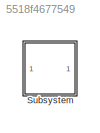
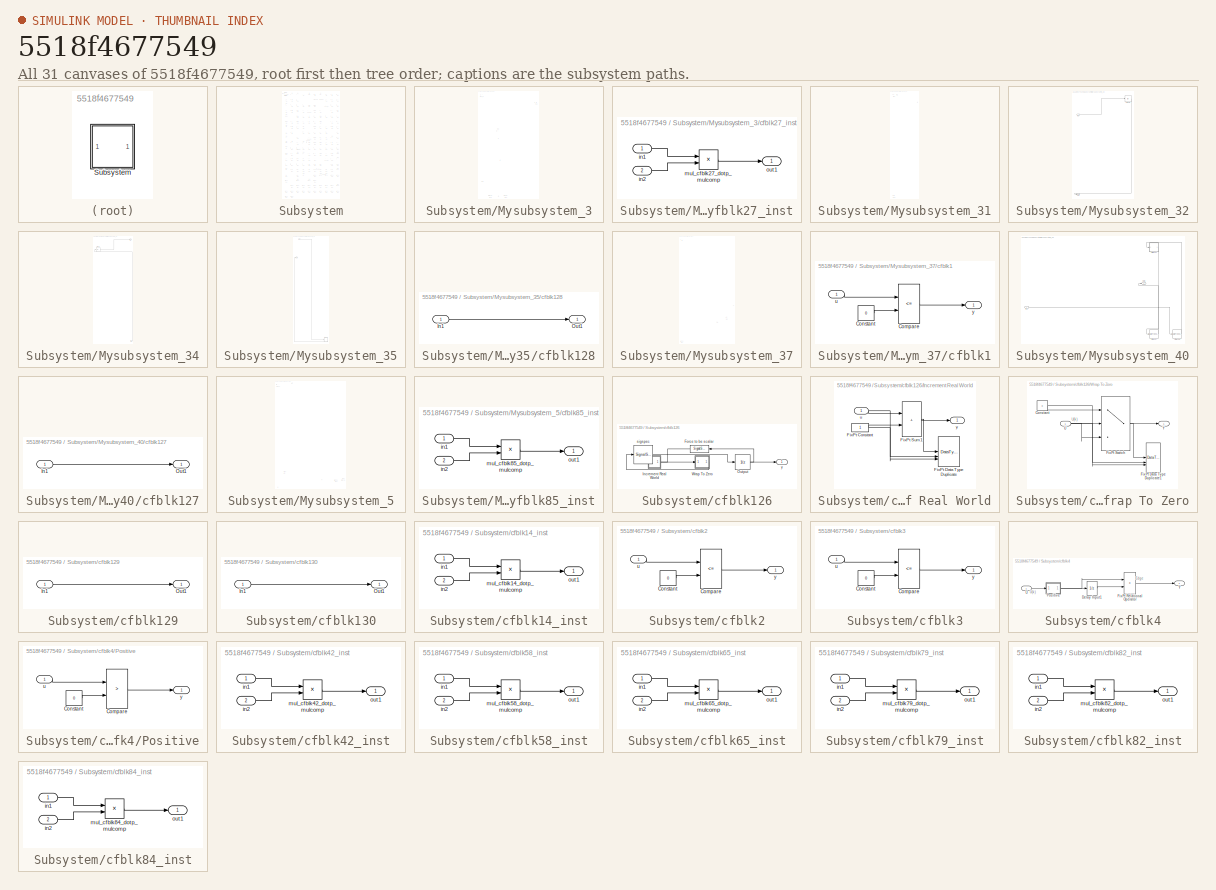
[diagram: thumbnail index - all 31 canvases of the model, root first then tree order]
MODEL slx_5518f4677549
KIND model
CONFIG AbsTol = auto
CONFIG EnableMultiTasking = off
CONFIG FixedStep = auto
CONFIG MaxStep = auto
CONFIG MinStep = auto
CONFIG RelTol = 1e-3
CONFIG SampleTimeConstraint = Unconstrained
CONFIG SolverName = VariableStepAuto
CONFIG StartTime = 0.0
CONFIG StopTime = 10.0
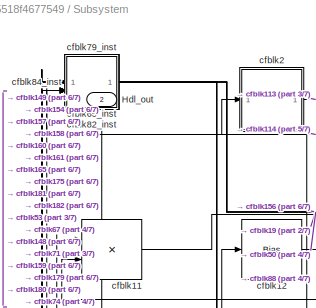
[diagram: Subsystem - part 1/7, top left region]
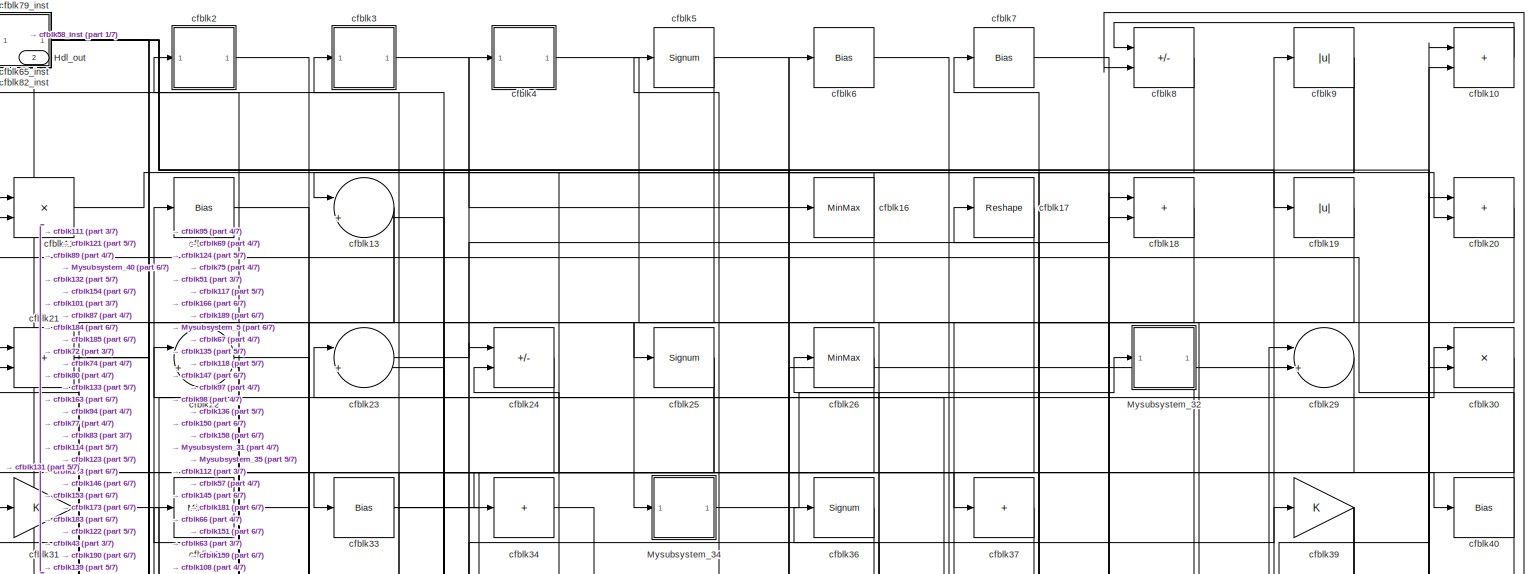
[diagram: Subsystem - part 2/7, full width, top band]
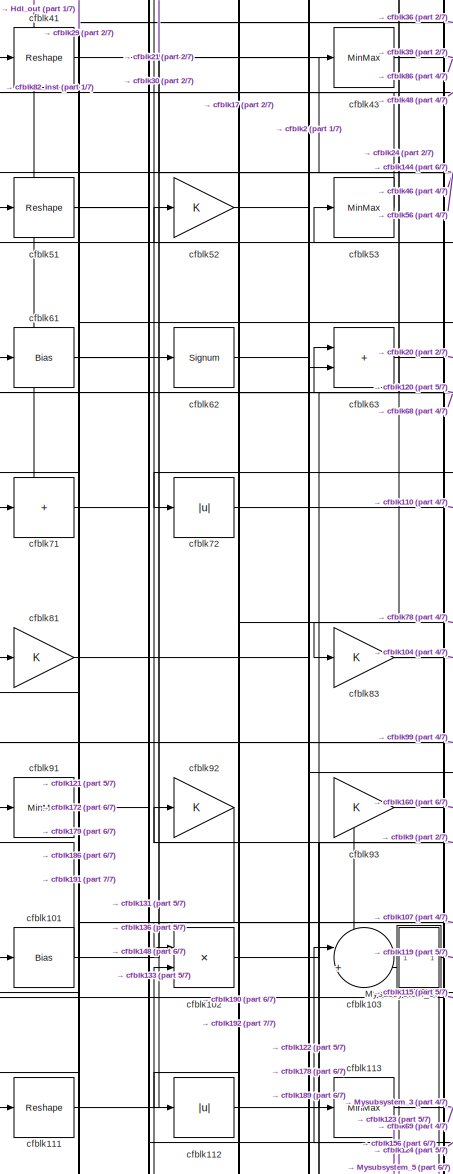
[diagram: Subsystem - part 3/7, middle left region]
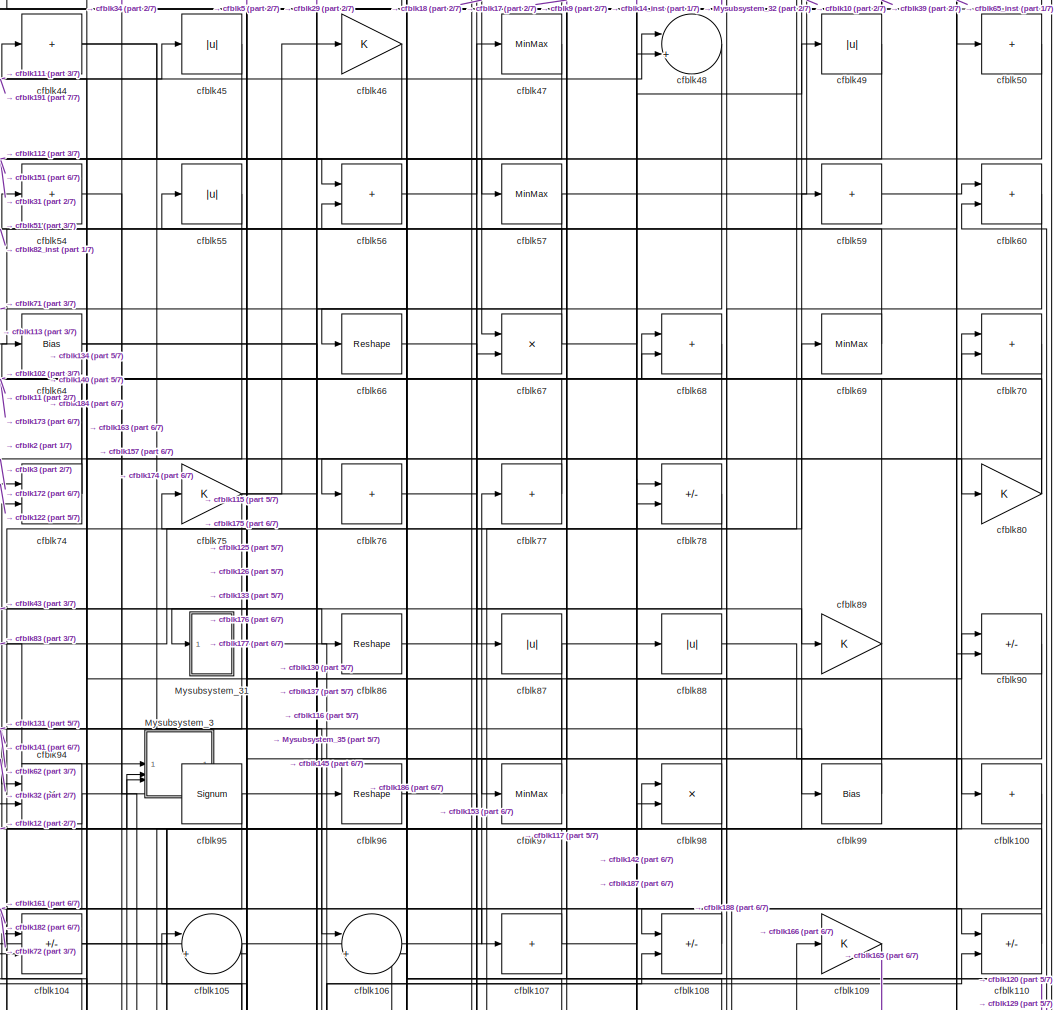
[diagram: Subsystem - part 4/7, central region]
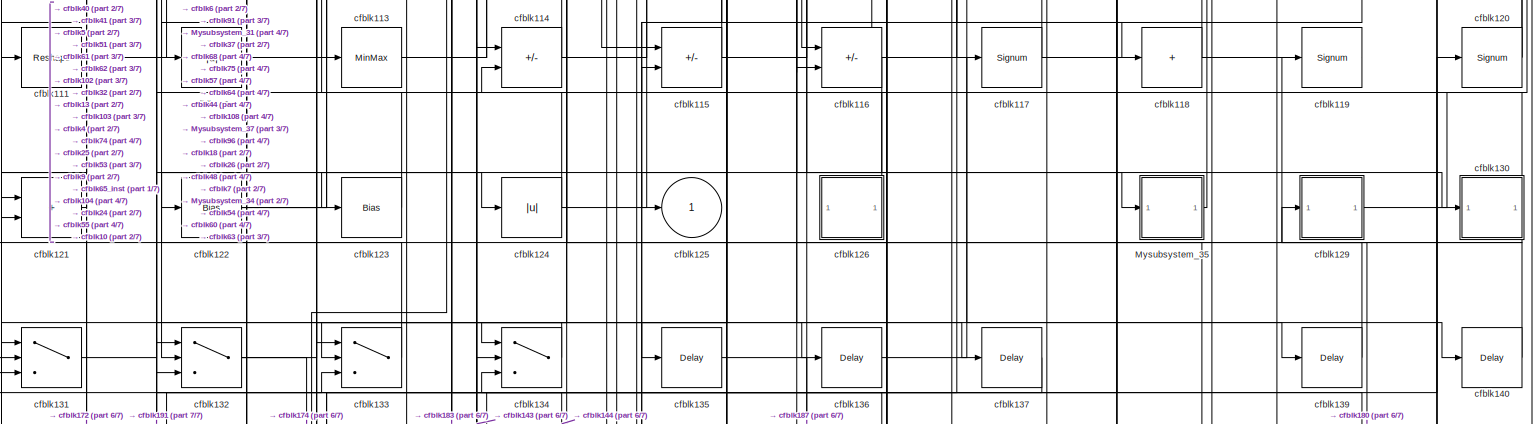
[diagram: Subsystem - part 5/7, full width, middle band]
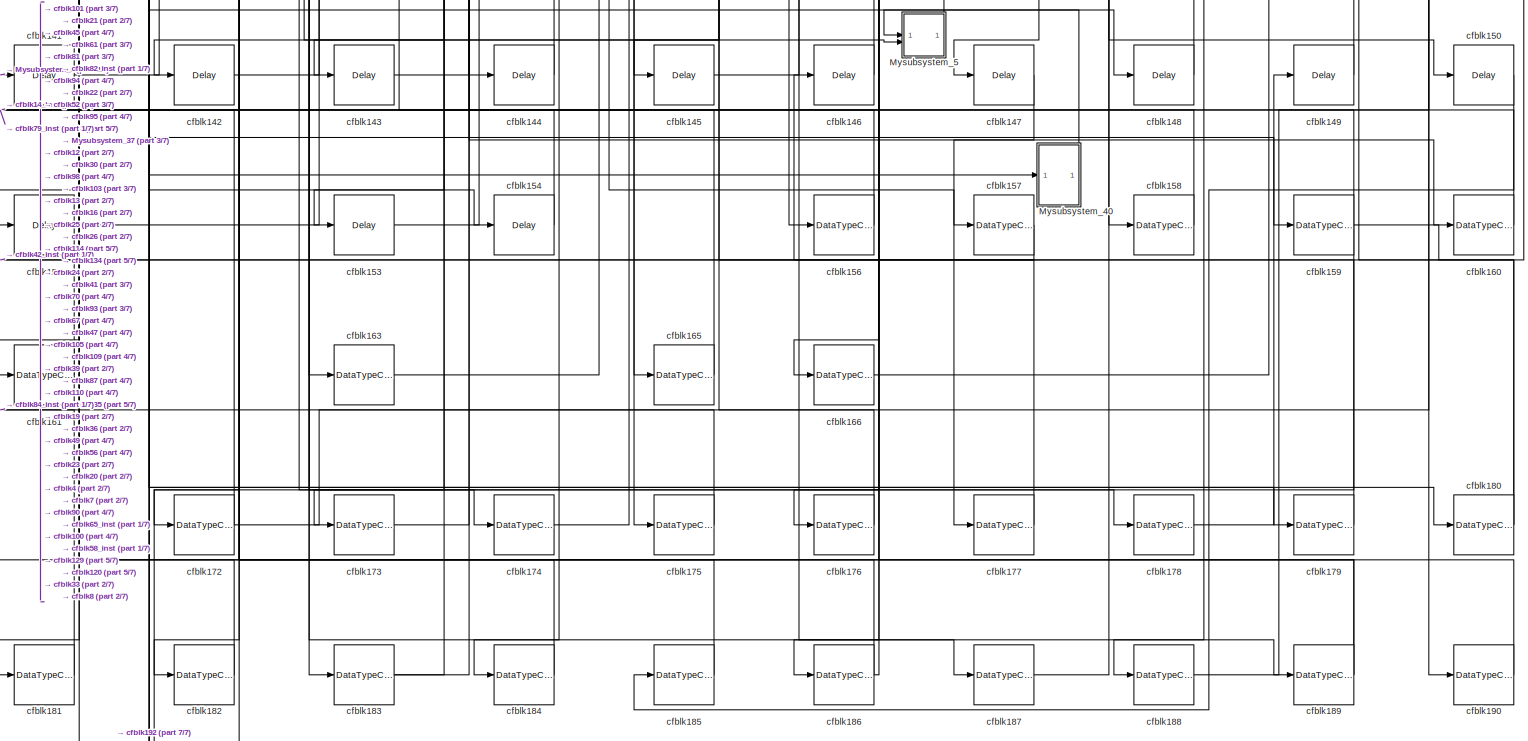
[diagram: Subsystem - part 6/7, full width, bottom band]
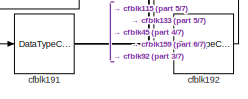
[diagram: Subsystem - part 7/7, bottom left region]
BLOCK [SubSystem] Subsystem
BLOCK [Outport] Subsystem/Hdl_out
  OutDataTypeStr = uint8
  Port = 2
  SampleTime = 1
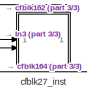
[diagram: Subsystem/Mysubsystem_3 - part 1/3, top left region]
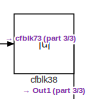
[diagram: Subsystem/Mysubsystem_3 - part 2/3, top right region]
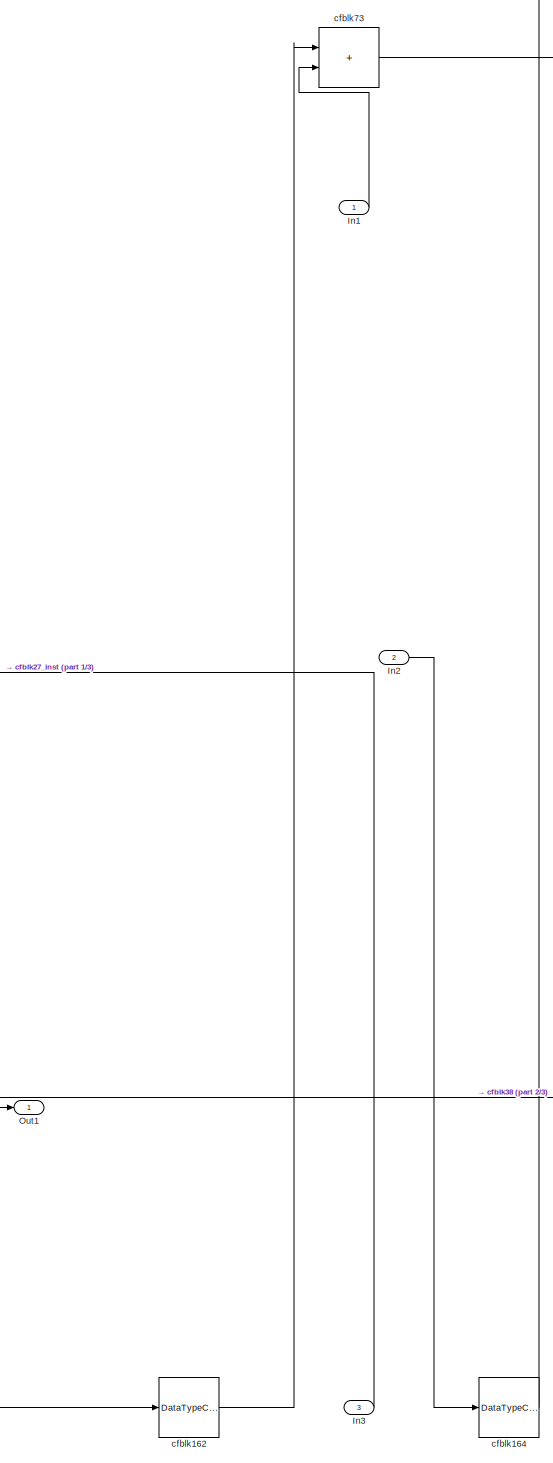
[diagram: Subsystem/Mysubsystem_3 - part 3/3, bottom left region]
BLOCK [SubSystem] Subsystem/Mysubsystem_3
BLOCK [Inport] Subsystem/Mysubsystem_3/In1
  OutDataTypeStr = uint8
  PortDimensions = 1
  SampleTime = 1
BLOCK [Inport] Subsystem/Mysubsystem_3/In2
  OutDataTypeStr = uint8
  Port = 2
  PortDimensions = 1
  SampleTime = 1
BLOCK [Inport] Subsystem/Mysubsystem_3/In3
  OutDataTypeStr = uint8
  Port = 3
  PortDimensions = 1
  SampleTime = 1
BLOCK [Outport] Subsystem/Mysubsystem_3/Out1
  SampleTime = 1
BLOCK [DataTypeConversion] Subsystem/Mysubsystem_3/cfblk162
  OutDataTypeStr = uint8
  RndMeth = Floor
  SaturateOnIntegerOverflow = off
BLOCK [DataTypeConversion] Subsystem/Mysubsystem_3/cfblk164
  OutDataTypeStr = uint8
  RndMeth = Floor
  SaturateOnIntegerOverflow = off
BLOCK [SubSystem] Subsystem/Mysubsystem_3/cfblk27_inst
BLOCK [Inport] Subsystem/Mysubsystem_3/cfblk27_inst/in1
  OutDataTypeStr = uint8
  SampleTime = 1
BLOCK [Inport] Subsystem/Mysubsystem_3/cfblk27_inst/in2
  OutDataTypeStr = uint8
  Port = 2
  SampleTime = 1
BLOCK [Product] Subsystem/Mysubsystem_3/cfblk27_inst/mul_cfblk27_dotp_mulcomp
  Inputs = **
  OutDataTypeStr = uint16
  SampleTime = 1
BLOCK [Outport] Subsystem/Mysubsystem_3/cfblk27_inst/out1
  OutDataTypeStr = uint16
  SampleTime = 1
BLOCK [Abs] Subsystem/Mysubsystem_3/cfblk38
  SaturateOnIntegerOverflow = off
BLOCK [Sum] Subsystem/Mysubsystem_3/cfblk73
  IconShape = rectangular
BLOCK [SubSystem] Subsystem/Mysubsystem_31
BLOCK [Inport] Subsystem/Mysubsystem_31/In1
  OutDataTypeStr = double
  PortDimensions = 1
  SampleTime = 1
BLOCK [Outport] Subsystem/Mysubsystem_31/Out1
  SampleTime = 1
BLOCK [Gain] Subsystem/Mysubsystem_31/cfblk15
BLOCK [Delay] Subsystem/Mysubsystem_31/cfblk155
  InputPortMap = u0
  SampleTime = 1
BLOCK [SubSystem] Subsystem/Mysubsystem_32
BLOCK [Inport] Subsystem/Mysubsystem_32/In1
  OutDataTypeStr = double
  PortDimensions = 1
  SampleTime = 1
BLOCK [Outport] Subsystem/Mysubsystem_32/Out1
  SampleTime = 1
BLOCK [Abs] Subsystem/Mysubsystem_32/cfblk28
  SaturateOnIntegerOverflow = off
BLOCK [SubSystem] Subsystem/Mysubsystem_34
BLOCK [Inport] Subsystem/Mysubsystem_34/In1
  OutDataTypeStr = double
  PortDimensions = 1
  SampleTime = 1
BLOCK [Outport] Subsystem/Mysubsystem_34/Out1
  SampleTime = 1
BLOCK [Abs] Subsystem/Mysubsystem_34/cfblk35
  SaturateOnIntegerOverflow = off
BLOCK [SubSystem] Subsystem/Mysubsystem_35
BLOCK [Inport] Subsystem/Mysubsystem_35/In1
  OutDataTypeStr = double
  PortDimensions = 1
  SampleTime = 1
BLOCK [Outport] Subsystem/Mysubsystem_35/Out1
  SampleTime = 1
BLOCK [SubSystem] Subsystem/Mysubsystem_35/cfblk128
BLOCK [Inport] Subsystem/Mysubsystem_35/cfblk128/In1
  OutDataTypeStr = double
  PortDimensions = 1
  SampleTime = 1
BLOCK [Outport] Subsystem/Mysubsystem_35/cfblk128/Out1
  SampleTime = 1
BLOCK [SubSystem] Subsystem/Mysubsystem_37
BLOCK [Inport] Subsystem/Mysubsystem_37/In1
  OutDataTypeStr = uint8
  PortDimensions = 1
  SampleTime = 1
BLOCK [Outport] Subsystem/Mysubsystem_37/Out1
  SampleTime = 1
BLOCK [SubSystem] Subsystem/Mysubsystem_37/cfblk1
BLOCK [RelationalOperator] Subsystem/Mysubsystem_37/cfblk1/Compare
  Operator = <=
  OutDataTypeStr = boolean
BLOCK [Constant] Subsystem/Mysubsystem_37/cfblk1/Constant
  DisableCoverage = on
  OutDataTypeStr = Inherit: Inherit via back propagation
  PreserveConstantTs = on
  SampleTime = -1
  Value = 0
BLOCK [Inport] Subsystem/Mysubsystem_37/cfblk1/u
  OutDataTypeStr = uint8
  SampleTime = 1
BLOCK [Outport] Subsystem/Mysubsystem_37/cfblk1/y
  SampleTime = 1
BLOCK [Delay] Subsystem/Mysubsystem_37/cfblk138
  InputPortMap = u0
  SampleTime = 1
BLOCK [DataTypeConversion] Subsystem/Mysubsystem_37/cfblk171
  OutDataTypeStr = uint8
  RndMeth = Floor
  SaturateOnIntegerOverflow = off
BLOCK [SubSystem] Subsystem/Mysubsystem_40
BLOCK [Inport] Subsystem/Mysubsystem_40/In1
  OutDataTypeStr = uint8
  PortDimensions = 1
  SampleTime = 1
BLOCK [Outport] Subsystem/Mysubsystem_40/Out1
  SampleTime = 1
BLOCK [SubSystem] Subsystem/Mysubsystem_40/cfblk127
BLOCK [Inport] Subsystem/Mysubsystem_40/cfblk127/In1
  OutDataTypeStr = uint8
  PortDimensions = 1
  SampleTime = 1
BLOCK [Outport] Subsystem/Mysubsystem_40/cfblk127/Out1
  SampleTime = 1
BLOCK [DataTypeConversion] Subsystem/Mysubsystem_40/cfblk167
  OutDataTypeStr = uint8
  RndMeth = Floor
  SaturateOnIntegerOverflow = off
BLOCK [DataTypeConversion] Subsystem/Mysubsystem_40/cfblk168
  OutDataTypeStr = uint8
  RndMeth = Floor
  SaturateOnIntegerOverflow = off
BLOCK [SubSystem] Subsystem/Mysubsystem_5
BLOCK [Inport] Subsystem/Mysubsystem_5/In1
  OutDataTypeStr = uint8
  PortDimensions = 1
  SampleTime = 1
BLOCK [Inport] Subsystem/Mysubsystem_5/In2
  OutDataTypeStr = uint8
  Port = 2
  PortDimensions = 1
  SampleTime = 1
BLOCK [Outport] Subsystem/Mysubsystem_5/Out1
  SampleTime = 1
BLOCK [Delay] Subsystem/Mysubsystem_5/cfblk152
  InputPortMap = u0
  SampleTime = 1
BLOCK [DataTypeConversion] Subsystem/Mysubsystem_5/cfblk169
  OutDataTypeStr = uint8
  RndMeth = Floor
  SaturateOnIntegerOverflow = off
BLOCK [DataTypeConversion] Subsystem/Mysubsystem_5/cfblk170
  OutDataTypeStr = uint8
  RndMeth = Floor
  SaturateOnIntegerOverflow = off
BLOCK [SubSystem] Subsystem/Mysubsystem_5/cfblk85_inst
BLOCK [Inport] Subsystem/Mysubsystem_5/cfblk85_inst/in1
  OutDataTypeStr = uint8
  SampleTime = 1
BLOCK [Inport] Subsystem/Mysubsystem_5/cfblk85_inst/in2
  OutDataTypeStr = uint8
  Port = 2
  SampleTime = 1
BLOCK [Product] Subsystem/Mysubsystem_5/cfblk85_inst/mul_cfblk85_dotp_mulcomp
  Inputs = **
  OutDataTypeStr = uint16
  SampleTime = 1
BLOCK [Outport] Subsystem/Mysubsystem_5/cfblk85_inst/out1
  OutDataTypeStr = uint16
  SampleTime = 1
BLOCK [Sum] Subsystem/cfblk10
  IconShape = rectangular
  OutDataTypeStr = uint8
BLOCK [Sum] Subsystem/cfblk100
  IconShape = rectangular
  Inputs = +
  OutDataTypeStr = uint8
BLOCK [Bias] Subsystem/cfblk101
  Bias = 0.0
  SaturateOnIntegerOverflow = off
BLOCK [Product] Subsystem/cfblk102
  Inputs = */
  OutDataTypeStr = uint8
  RndMeth = Zero
  SaturateOnIntegerOverflow = on
BLOCK [Sum] Subsystem/cfblk103
  Inputs = |++
  OutDataTypeStr = uint8
BLOCK [Sum] Subsystem/cfblk104
  IconShape = rectangular
  Inputs = +-
  OutDataTypeStr = uint8
BLOCK [Sum] Subsystem/cfblk105
  Inputs = |++
  OutDataTypeStr = uint8
BLOCK [Sum] Subsystem/cfblk106
  Inputs = |++
  OutDataTypeStr = uint8
BLOCK [Sum] Subsystem/cfblk107
  IconShape = rectangular
  Inputs = +
  OutDataTypeStr = uint8
BLOCK [Sum] Subsystem/cfblk108
  IconShape = rectangular
  Inputs = +-
  OutDataTypeStr = uint8
BLOCK [Gain] Subsystem/cfblk109
  OutDataTypeStr = uint8
BLOCK [Product] Subsystem/cfblk11
  Inputs = */
  OutDataTypeStr = uint8
  RndMeth = Zero
  SaturateOnIntegerOverflow = on
BLOCK [Sum] Subsystem/cfblk110
  IconShape = rectangular
  Inputs = +-
  OutDataTypeStr = uint8
BLOCK [Reshape] Subsystem/cfblk111
BLOCK [Abs] Subsystem/cfblk112
  OutDataTypeStr = uint8
  SaturateOnIntegerOverflow = off
BLOCK [MinMax] Subsystem/cfblk113
  OutDataTypeStr = uint8
BLOCK [Sum] Subsystem/cfblk114
  IconShape = rectangular
  Inputs = +-
  OutDataTypeStr = uint8
BLOCK [Sum] Subsystem/cfblk115
  IconShape = rectangular
  Inputs = +-
  OutDataTypeStr = uint8
BLOCK [Sum] Subsystem/cfblk116
  IconShape = rectangular
  Inputs = +-
  OutDataTypeStr = uint8
BLOCK [Signum] Subsystem/cfblk117
BLOCK [Sum] Subsystem/cfblk118
  IconShape = rectangular
  Inputs = +
  OutDataTypeStr = uint8
BLOCK [Signum] Subsystem/cfblk119
BLOCK [Bias] Subsystem/cfblk12
  Bias = 0.0
  SaturateOnIntegerOverflow = off
BLOCK [Signum] Subsystem/cfblk120
BLOCK [Sum] Subsystem/cfblk121
  IconShape = rectangular
  OutDataTypeStr = uint8
BLOCK [Bias] Subsystem/cfblk122
  Bias = 0.0
  SaturateOnIntegerOverflow = off
BLOCK [Bias] Subsystem/cfblk123
  Bias = 0.0
  SaturateOnIntegerOverflow = off
BLOCK [Abs] Subsystem/cfblk124
  OutDataTypeStr = uint8
  SaturateOnIntegerOverflow = off
BLOCK [Outport] Subsystem/cfblk125
  OutDataTypeStr = uint8
  SampleTime = 1
  VectorParamsAs1DForOutWhenUnconnected = off
BLOCK [SubSystem] Subsystem/cfblk126
BLOCK [SignalSpecification] Subsystem/cfblk126/Force to be scalar
  Dimensions = 1
  DisableCoverage = on
BLOCK [SubSystem] Subsystem/cfblk126/Increment Real World
BLOCK [Constant] Subsystem/cfblk126/Increment Real World/FixPt Constant
  DisableCoverage = on
  OutDataTypeStr = Inherit: Inherit via back propagation
  SampleTime = -1
BLOCK [DataTypeDuplicate] Subsystem/cfblk126/Increment Real World/FixPt Data Type Duplicate
  DisableCoverage = on
  NumInputPorts = 3
BLOCK [Sum] Subsystem/cfblk126/Increment Real World/FixPt Sum1
  IconShape = rectangular
  InputSameDT = on
  LockScale = on
  OutDataTypeStr = Inherit: Inherit via back propagation
BLOCK [Inport] Subsystem/cfblk126/Increment Real World/u
  OutDataTypeStr = uint8
  SampleTime = 1
BLOCK [Outport] Subsystem/cfblk126/Increment Real World/y
  SampleTime = 1
BLOCK [UnitDelay] Subsystem/cfblk126/Output
  HasFrameUpgradeWarning = on
  InitialCondition = 0.0
  SampleTime = tsamp
BLOCK [SubSystem] Subsystem/cfblk126/Wrap To Zero
BLOCK [Constant] Subsystem/cfblk126/Wrap To Zero/Constant
  DisableCoverage = on
  OutDataTypeStr = Inherit: Inherit via back propagation
  SampleTime = -1
  Value = 0
BLOCK [DataTypeDuplicate] Subsystem/cfblk126/Wrap To Zero/FixPt Data Type Duplicate1
  DisableCoverage = on
  NumInputPorts = 3
BLOCK [Switch] Subsystem/cfblk126/Wrap To Zero/FixPt Switch
  Criteria = u2 > Threshold
  InputSameDT = off
  OutDataTypeStr = Inherit: Inherit via back propagation
  SaturateOnIntegerOverflow = off
  Threshold = Threshold
  ZeroCross = off
BLOCK [Inport] Subsystem/cfblk126/Wrap To Zero/U
  OutDataTypeStr = uint8
  SampleTime = 1
BLOCK [Outport] Subsystem/cfblk126/Wrap To Zero/Y
  SampleTime = 1
BLOCK [SignalSpecification] Subsystem/cfblk126/sigspec
  Dimensions = 1
  OutDataTypeStr = uint8
BLOCK [Outport] Subsystem/cfblk126/y
  SampleTime = 1
BLOCK [SubSystem] Subsystem/cfblk129
BLOCK [Inport] Subsystem/cfblk129/In1
  OutDataTypeStr = uint8
  PortDimensions = 1
  SampleTime = 1
BLOCK [Outport] Subsystem/cfblk129/Out1
  SampleTime = 1
BLOCK [Sum] Subsystem/cfblk13
  Inputs = |++
  OutDataTypeStr = uint8
BLOCK [SubSystem] Subsystem/cfblk130
BLOCK [Inport] Subsystem/cfblk130/In1
  OutDataTypeStr = uint8
  PortDimensions = 1
  SampleTime = 1
BLOCK [Outport] Subsystem/cfblk130/Out1
  SampleTime = 1
BLOCK [Switch] Subsystem/cfblk131
  InputSameDT = off
  OutDataTypeStr = uint8
  SaturateOnIntegerOverflow = off
BLOCK [Switch] Subsystem/cfblk132
  InputSameDT = off
  OutDataTypeStr = uint8
  SaturateOnIntegerOverflow = off
BLOCK [Switch] Subsystem/cfblk133
  InputSameDT = off
  OutDataTypeStr = uint8
  SaturateOnIntegerOverflow = off
BLOCK [Switch] Subsystem/cfblk134
  InputSameDT = off
  OutDataTypeStr = uint8
  SaturateOnIntegerOverflow = off
BLOCK [Delay] Subsystem/cfblk135
  InputPortMap = u0
  SampleTime = 1
BLOCK [Delay] Subsystem/cfblk136
  InputPortMap = u0
  SampleTime = 1
BLOCK [Delay] Subsystem/cfblk137
  InputPortMap = u0
  SampleTime = 1
BLOCK [Delay] Subsystem/cfblk139
  InputPortMap = u0
  SampleTime = 1
BLOCK [Delay] Subsystem/cfblk140
  InputPortMap = u0
  SampleTime = 1
BLOCK [Delay] Subsystem/cfblk141
  InputPortMap = u0
  SampleTime = 1
BLOCK [Delay] Subsystem/cfblk142
  InputPortMap = u0
  SampleTime = 1
BLOCK [Delay] Subsystem/cfblk143
  InputPortMap = u0
  SampleTime = 1
BLOCK [Delay] Subsystem/cfblk144
  InputPortMap = u0
  SampleTime = 1
BLOCK [Delay] Subsystem/cfblk145
  InputPortMap = u0
  SampleTime = 1
BLOCK [Delay] Subsystem/cfblk146
  InputPortMap = u0
  SampleTime = 1
BLOCK [Delay] Subsystem/cfblk147
  InputPortMap = u0
  SampleTime = 1
BLOCK [Delay] Subsystem/cfblk148
  InputPortMap = u0
  SampleTime = 1
BLOCK [Delay] Subsystem/cfblk149
  InputPortMap = u0
  SampleTime = 1
BLOCK [SubSystem] Subsystem/cfblk14_inst
BLOCK [Inport] Subsystem/cfblk14_inst/in1
  OutDataTypeStr = uint8
  SampleTime = 1
BLOCK [Inport] Subsystem/cfblk14_inst/in2
  OutDataTypeStr = uint8
  Port = 2
  SampleTime = 1
BLOCK [Product] Subsystem/cfblk14_inst/mul_cfblk14_dotp_mulcomp
  Inputs = **
  OutDataTypeStr = uint8
  SampleTime = 1
BLOCK [Outport] Subsystem/cfblk14_inst/out1
  OutDataTypeStr = uint8
  SampleTime = 1
BLOCK [Delay] Subsystem/cfblk150
  InputPortMap = u0
  SampleTime = 1
BLOCK [Delay] Subsystem/cfblk151
  InputPortMap = u0
  SampleTime = 1
BLOCK [Delay] Subsystem/cfblk153
  InputPortMap = u0
  SampleTime = 1
BLOCK [Delay] Subsystem/cfblk154
  InputPortMap = u0
  SampleTime = 1
BLOCK [DataTypeConversion] Subsystem/cfblk156
  OutDataTypeStr = uint8
  RndMeth = Floor
  SaturateOnIntegerOverflow = off
BLOCK [DataTypeConversion] Subsystem/cfblk157
  OutDataTypeStr = uint8
  RndMeth = Floor
  SaturateOnIntegerOverflow = off
BLOCK [DataTypeConversion] Subsystem/cfblk158
  OutDataTypeStr = uint8
  RndMeth = Floor
  SaturateOnIntegerOverflow = off
BLOCK [DataTypeConversion] Subsystem/cfblk159
  OutDataTypeStr = uint8
  RndMeth = Floor
  SaturateOnIntegerOverflow = off
BLOCK [MinMax] Subsystem/cfblk16
  OutDataTypeStr = uint8
BLOCK [DataTypeConversion] Subsystem/cfblk160
  OutDataTypeStr = uint8
  RndMeth = Floor
  SaturateOnIntegerOverflow = off
BLOCK [DataTypeConversion] Subsystem/cfblk161
  OutDataTypeStr = uint8
  RndMeth = Floor
  SaturateOnIntegerOverflow = off
BLOCK [DataTypeConversion] Subsystem/cfblk163
  OutDataTypeStr = uint8
  RndMeth = Floor
  SaturateOnIntegerOverflow = off
BLOCK [DataTypeConversion] Subsystem/cfblk165
  OutDataTypeStr = uint8
  RndMeth = Floor
  SaturateOnIntegerOverflow = off
BLOCK [DataTypeConversion] Subsystem/cfblk166
  OutDataTypeStr = uint8
  RndMeth = Floor
  SaturateOnIntegerOverflow = off
BLOCK [Reshape] Subsystem/cfblk17
BLOCK [DataTypeConversion] Subsystem/cfblk172
  OutDataTypeStr = uint8
  RndMeth = Floor
  SaturateOnIntegerOverflow = off
BLOCK [DataTypeConversion] Subsystem/cfblk173
  OutDataTypeStr = uint8
  RndMeth = Floor
  SaturateOnIntegerOverflow = off
BLOCK [DataTypeConversion] Subsystem/cfblk174
  OutDataTypeStr = uint8
  RndMeth = Floor
  SaturateOnIntegerOverflow = off
BLOCK [DataTypeConversion] Subsystem/cfblk175
  OutDataTypeStr = uint8
  RndMeth = Floor
  SaturateOnIntegerOverflow = off
BLOCK [DataTypeConversion] Subsystem/cfblk176
  OutDataTypeStr = uint8
  RndMeth = Floor
  SaturateOnIntegerOverflow = off
BLOCK [DataTypeConversion] Subsystem/cfblk177
  OutDataTypeStr = uint8
  RndMeth = Floor
  SaturateOnIntegerOverflow = off
BLOCK [DataTypeConversion] Subsystem/cfblk178
  OutDataTypeStr = uint8
  RndMeth = Floor
  SaturateOnIntegerOverflow = off
BLOCK [DataTypeConversion] Subsystem/cfblk179
  OutDataTypeStr = uint8
  RndMeth = Floor
  SaturateOnIntegerOverflow = off
BLOCK [Sum] Subsystem/cfblk18
  IconShape = rectangular
  OutDataTypeStr = uint8
BLOCK [DataTypeConversion] Subsystem/cfblk180
  OutDataTypeStr = uint8
  RndMeth = Floor
  SaturateOnIntegerOverflow = off
BLOCK [DataTypeConversion] Subsystem/cfblk181
  OutDataTypeStr = uint8
  RndMeth = Floor
  SaturateOnIntegerOverflow = off
BLOCK [DataTypeConversion] Subsystem/cfblk182
  OutDataTypeStr = uint8
  RndMeth = Floor
  SaturateOnIntegerOverflow = off
BLOCK [DataTypeConversion] Subsystem/cfblk183
  OutDataTypeStr = uint8
  RndMeth = Floor
  SaturateOnIntegerOverflow = off
BLOCK [DataTypeConversion] Subsystem/cfblk184
  OutDataTypeStr = uint8
  RndMeth = Floor
  SaturateOnIntegerOverflow = off
BLOCK [DataTypeConversion] Subsystem/cfblk185
  OutDataTypeStr = uint8
  RndMeth = Floor
  SaturateOnIntegerOverflow = off
BLOCK [DataTypeConversion] Subsystem/cfblk186
  OutDataTypeStr = uint8
  RndMeth = Floor
  SaturateOnIntegerOverflow = off
BLOCK [DataTypeConversion] Subsystem/cfblk187
  OutDataTypeStr = uint8
  RndMeth = Floor
  SaturateOnIntegerOverflow = off
BLOCK [DataTypeConversion] Subsystem/cfblk188
  OutDataTypeStr = uint8
  RndMeth = Floor
  SaturateOnIntegerOverflow = off
BLOCK [DataTypeConversion] Subsystem/cfblk189
  OutDataTypeStr = uint8
  RndMeth = Floor
  SaturateOnIntegerOverflow = off
BLOCK [Abs] Subsystem/cfblk19
  OutDataTypeStr = uint8
  SaturateOnIntegerOverflow = off
BLOCK [DataTypeConversion] Subsystem/cfblk190
  OutDataTypeStr = uint8
  RndMeth = Floor
  SaturateOnIntegerOverflow = off
BLOCK [DataTypeConversion] Subsystem/cfblk191
  OutDataTypeStr = uint8
  RndMeth = Floor
  SaturateOnIntegerOverflow = off
BLOCK [DataTypeConversion] Subsystem/cfblk192
  OutDataTypeStr = uint8
  RndMeth = Floor
  SaturateOnIntegerOverflow = off
BLOCK [SubSystem] Subsystem/cfblk2
BLOCK [RelationalOperator] Subsystem/cfblk2/Compare
  Operator = <=
  OutDataTypeStr = fixdt(0, 8)
BLOCK [Constant] Subsystem/cfblk2/Constant
  DisableCoverage = on
  OutDataTypeStr = Inherit: Inherit via back propagation
  PreserveConstantTs = on
  SampleTime = -1
  Value = 0
BLOCK [Inport] Subsystem/cfblk2/u
  OutDataTypeStr = uint8
  SampleTime = 1
BLOCK [Outport] Subsystem/cfblk2/y
  SampleTime = 1
BLOCK [Sum] Subsystem/cfblk20
  IconShape = rectangular
  OutDataTypeStr = uint8
BLOCK [Sum] Subsystem/cfblk21
  IconShape = rectangular
  OutDataTypeStr = uint8
BLOCK [Sum] Subsystem/cfblk22
  Inputs = |++
  OutDataTypeStr = uint8
BLOCK [Sum] Subsystem/cfblk23
  Inputs = |++
  OutDataTypeStr = uint8
BLOCK [Sum] Subsystem/cfblk24
  IconShape = rectangular
  Inputs = +-
  OutDataTypeStr = uint8
BLOCK [Signum] Subsystem/cfblk25
BLOCK [MinMax] Subsystem/cfblk26
  OutDataTypeStr = uint8
BLOCK [Sum] Subsystem/cfblk29
  Inputs = |++
  OutDataTypeStr = uint8
BLOCK [SubSystem] Subsystem/cfblk3
BLOCK [RelationalOperator] Subsystem/cfblk3/Compare
  Operator = <=
  OutDataTypeStr = fixdt(0, 8)
BLOCK [Constant] Subsystem/cfblk3/Constant
  DisableCoverage = on
  OutDataTypeStr = Inherit: Inherit via back propagation
  PreserveConstantTs = on
  SampleTime = -1
  Value = 0
BLOCK [Inport] Subsystem/cfblk3/u
  OutDataTypeStr = uint8
  SampleTime = 1
BLOCK [Outport] Subsystem/cfblk3/y
  SampleTime = 1
BLOCK [Product] Subsystem/cfblk30
  Inputs = */
  OutDataTypeStr = uint8
  RndMeth = Zero
  SaturateOnIntegerOverflow = on
BLOCK [Gain] Subsystem/cfblk31
  OutDataTypeStr = uint8
BLOCK [MinMax] Subsystem/cfblk32
  OutDataTypeStr = uint8
BLOCK [Bias] Subsystem/cfblk33
  Bias = 0.0
  SaturateOnIntegerOverflow = off
BLOCK [Sum] Subsystem/cfblk34
  IconShape = rectangular
  Inputs = +
  OutDataTypeStr = uint8
BLOCK [Signum] Subsystem/cfblk36
BLOCK [Sum] Subsystem/cfblk37
  IconShape = rectangular
  Inputs = +
  OutDataTypeStr = uint8
BLOCK [Gain] Subsystem/cfblk39
  OutDataTypeStr = uint8
BLOCK [SubSystem] Subsystem/cfblk4
BLOCK [UnitDelay] Subsystem/cfblk4/Delay Input1
  Description = Store in Global RAM
  DisableCoverage = on
  HasFrameUpgradeWarning = on
  InitialCondition = vinit
  SampleTime = -1
BLOCK [RelationalOperator] Subsystem/cfblk4/FixPt Relational Operator
  InputSameDT = off
  Operator = >
  OutDataTypeStr = fixdt(0, 8)
  ZeroCross = off
BLOCK [SubSystem] Subsystem/cfblk4/Positive
BLOCK [RelationalOperator] Subsystem/cfblk4/Positive/Compare
  Operator = >
  OutDataTypeStr = boolean
  ZeroCross = off
BLOCK [Constant] Subsystem/cfblk4/Positive/Constant
  DisableCoverage = on
  OutDataTypeStr = Inherit: Inherit via back propagation
  PreserveConstantTs = on
  SampleTime = -1
  Value = 0
BLOCK [Inport] Subsystem/cfblk4/Positive/u
  OutDataTypeStr = uint8
  SampleTime = 1
BLOCK [Outport] Subsystem/cfblk4/Positive/y
  SampleTime = 1
BLOCK [Inport] Subsystem/cfblk4/U
  OutDataTypeStr = uint8
  SampleTime = 1
BLOCK [Outport] Subsystem/cfblk4/Y
  SampleTime = 1
BLOCK [Bias] Subsystem/cfblk40
  Bias = 0.0
  SaturateOnIntegerOverflow = off
BLOCK [Reshape] Subsystem/cfblk41
BLOCK [SubSystem] Subsystem/cfblk42_inst
BLOCK [Inport] Subsystem/cfblk42_inst/in1
  OutDataTypeStr = uint8
  SampleTime = 1
BLOCK [Inport] Subsystem/cfblk42_inst/in2
  OutDataTypeStr = uint8
  Port = 2
  SampleTime = 1
BLOCK [Product] Subsystem/cfblk42_inst/mul_cfblk42_dotp_mulcomp
  Inputs = **
  OutDataTypeStr = uint8
  SampleTime = 1
BLOCK [Outport] Subsystem/cfblk42_inst/out1
  OutDataTypeStr = uint8
  SampleTime = 1
BLOCK [MinMax] Subsystem/cfblk43
  OutDataTypeStr = uint8
BLOCK [Sum] Subsystem/cfblk44
  IconShape = rectangular
  Inputs = +
  OutDataTypeStr = uint8
BLOCK [Abs] Subsystem/cfblk45
  OutDataTypeStr = uint8
  SaturateOnIntegerOverflow = off
BLOCK [Gain] Subsystem/cfblk46
  OutDataTypeStr = uint8
BLOCK [MinMax] Subsystem/cfblk47
  OutDataTypeStr = uint8
BLOCK [Sum] Subsystem/cfblk48
  Inputs = |++
  OutDataTypeStr = uint8
BLOCK [Abs] Subsystem/cfblk49
  OutDataTypeStr = uint8
  SaturateOnIntegerOverflow = off
BLOCK [Signum] Subsystem/cfblk5
BLOCK [Sum] Subsystem/cfblk50
  IconShape = rectangular
  Inputs = +
  OutDataTypeStr = uint8
BLOCK [Reshape] Subsystem/cfblk51
BLOCK [Gain] Subsystem/cfblk52
  OutDataTypeStr = uint8
BLOCK [MinMax] Subsystem/cfblk53
  OutDataTypeStr = uint8
BLOCK [Sum] Subsystem/cfblk54
  IconShape = rectangular
  Inputs = +
  OutDataTypeStr = uint8
BLOCK [Abs] Subsystem/cfblk55
  OutDataTypeStr = uint8
  SaturateOnIntegerOverflow = off
BLOCK [Sum] Subsystem/cfblk56
  IconShape = rectangular
  OutDataTypeStr = uint8
BLOCK [MinMax] Subsystem/cfblk57
  OutDataTypeStr = uint8
BLOCK [SubSystem] Subsystem/cfblk58_inst
BLOCK [Inport] Subsystem/cfblk58_inst/in1
  OutDataTypeStr = uint8
  SampleTime = 1
BLOCK [Inport] Subsystem/cfblk58_inst/in2
  OutDataTypeStr = uint8
  Port = 2
  SampleTime = 1
BLOCK [Product] Subsystem/cfblk58_inst/mul_cfblk58_dotp_mulcomp
  Inputs = **
  OutDataTypeStr = uint8
  SampleTime = 1
BLOCK [Outport] Subsystem/cfblk58_inst/out1
  OutDataTypeStr = uint8
  SampleTime = 1
BLOCK [Sum] Subsystem/cfblk59
  IconShape = rectangular
  Inputs = +
  OutDataTypeStr = uint8
BLOCK [Bias] Subsystem/cfblk6
  Bias = 0.0
  SaturateOnIntegerOverflow = off
BLOCK [Sum] Subsystem/cfblk60
  IconShape = rectangular
  OutDataTypeStr = uint8
BLOCK [Bias] Subsystem/cfblk61
  Bias = 0.0
  SaturateOnIntegerOverflow = off
BLOCK [Signum] Subsystem/cfblk62
BLOCK [Sum] Subsystem/cfblk63
  IconShape = rectangular
  OutDataTypeStr = uint8
BLOCK [Bias] Subsystem/cfblk64
  Bias = 0.0
  SaturateOnIntegerOverflow = off
BLOCK [SubSystem] Subsystem/cfblk65_inst
BLOCK [Inport] Subsystem/cfblk65_inst/in1
  OutDataTypeStr = uint8
  SampleTime = 1
BLOCK [Inport] Subsystem/cfblk65_inst/in2
  OutDataTypeStr = uint8
  Port = 2
  SampleTime = 1
BLOCK [Product] Subsystem/cfblk65_inst/mul_cfblk65_dotp_mulcomp
  Inputs = **
  OutDataTypeStr = uint8
  SampleTime = 1
BLOCK [Outport] Subsystem/cfblk65_inst/out1
  OutDataTypeStr = uint8
  SampleTime = 1
BLOCK [Reshape] Subsystem/cfblk66
BLOCK [Product] Subsystem/cfblk67
  Inputs = */
  OutDataTypeStr = uint8
  RndMeth = Zero
  SaturateOnIntegerOverflow = on
BLOCK [Sum] Subsystem/cfblk68
  IconShape = rectangular
  OutDataTypeStr = uint8
BLOCK [MinMax] Subsystem/cfblk69
  OutDataTypeStr = uint8
BLOCK [Bias] Subsystem/cfblk7
  Bias = 0.0
  SaturateOnIntegerOverflow = off
BLOCK [Sum] Subsystem/cfblk70
  IconShape = rectangular
  OutDataTypeStr = uint8
BLOCK [Sum] Subsystem/cfblk71
  IconShape = rectangular
  Inputs = +
  OutDataTypeStr = uint8
BLOCK [Abs] Subsystem/cfblk72
  OutDataTypeStr = uint8
  SaturateOnIntegerOverflow = off
BLOCK [Product] Subsystem/cfblk74
  Inputs = */
  OutDataTypeStr = uint8
  RndMeth = Zero
  SaturateOnIntegerOverflow = on
BLOCK [Gain] Subsystem/cfblk75
  OutDataTypeStr = uint8
BLOCK [Sum] Subsystem/cfblk76
  IconShape = rectangular
  Inputs = +
  OutDataTypeStr = uint8
BLOCK [Sum] Subsystem/cfblk77
  IconShape = rectangular
  Inputs = +
  OutDataTypeStr = uint8
BLOCK [Sum] Subsystem/cfblk78
  IconShape = rectangular
  Inputs = +-
  OutDataTypeStr = uint8
BLOCK [SubSystem] Subsystem/cfblk79_inst
BLOCK [Inport] Subsystem/cfblk79_inst/in1
  OutDataTypeStr = uint8
  SampleTime = 1
BLOCK [Inport] Subsystem/cfblk79_inst/in2
  OutDataTypeStr = uint8
  Port = 2
  SampleTime = 1
BLOCK [Product] Subsystem/cfblk79_inst/mul_cfblk79_dotp_mulcomp
  Inputs = **
  OutDataTypeStr = uint8
  SampleTime = 1
BLOCK [Outport] Subsystem/cfblk79_inst/out1
  OutDataTypeStr = uint8
  SampleTime = 1
BLOCK [Sum] Subsystem/cfblk8
  IconShape = rectangular
  Inputs = +-
  OutDataTypeStr = uint8
BLOCK [Gain] Subsystem/cfblk80
  OutDataTypeStr = uint8
BLOCK [Gain] Subsystem/cfblk81
  OutDataTypeStr = uint8
BLOCK [SubSystem] Subsystem/cfblk82_inst
BLOCK [Inport] Subsystem/cfblk82_inst/in1
  OutDataTypeStr = uint8
  SampleTime = 1
BLOCK [Inport] Subsystem/cfblk82_inst/in2
  OutDataTypeStr = uint8
  Port = 2
  SampleTime = 1
BLOCK [Product] Subsystem/cfblk82_inst/mul_cfblk82_dotp_mulcomp
  Inputs = **
  OutDataTypeStr = uint8
  SampleTime = 1
BLOCK [Outport] Subsystem/cfblk82_inst/out1
  OutDataTypeStr = uint8
  SampleTime = 1
BLOCK [Gain] Subsystem/cfblk83
  OutDataTypeStr = uint8
BLOCK [SubSystem] Subsystem/cfblk84_inst
BLOCK [Inport] Subsystem/cfblk84_inst/in1
  OutDataTypeStr = uint8
  SampleTime = 1
BLOCK [Inport] Subsystem/cfblk84_inst/in2
  OutDataTypeStr = uint8
  Port = 2
  SampleTime = 1
BLOCK [Product] Subsystem/cfblk84_inst/mul_cfblk84_dotp_mulcomp
  Inputs = **
  OutDataTypeStr = uint8
  SampleTime = 1
BLOCK [Outport] Subsystem/cfblk84_inst/out1
  OutDataTypeStr = uint8
  SampleTime = 1
BLOCK [Reshape] Subsystem/cfblk86
BLOCK [Abs] Subsystem/cfblk87
  OutDataTypeStr = uint8
  SaturateOnIntegerOverflow = off
BLOCK [Abs] Subsystem/cfblk88
  OutDataTypeStr = uint8
  SaturateOnIntegerOverflow = off
BLOCK [Gain] Subsystem/cfblk89
  OutDataTypeStr = uint8
BLOCK [Abs] Subsystem/cfblk9
  OutDataTypeStr = uint8
  SaturateOnIntegerOverflow = off
BLOCK [Sum] Subsystem/cfblk90
  IconShape = rectangular
  Inputs = +-
  OutDataTypeStr = uint8
BLOCK [MinMax] Subsystem/cfblk91
  OutDataTypeStr = uint8
BLOCK [Gain] Subsystem/cfblk92
  OutDataTypeStr = uint8
BLOCK [Gain] Subsystem/cfblk93
  OutDataTypeStr = uint8
BLOCK [Product] Subsystem/cfblk94
  Inputs = */
  OutDataTypeStr = uint8
  RndMeth = Zero
  SaturateOnIntegerOverflow = on
BLOCK [Signum] Subsystem/cfblk95
BLOCK [Reshape] Subsystem/cfblk96
BLOCK [MinMax] Subsystem/cfblk97
  OutDataTypeStr = uint8
BLOCK [Product] Subsystem/cfblk98
  Inputs = */
  OutDataTypeStr = uint8
  RndMeth = Zero
  SaturateOnIntegerOverflow = on
BLOCK [Bias] Subsystem/cfblk99
  Bias = 0.0
  SaturateOnIntegerOverflow = off
ANNOTATION Subsystem/cfblk126/Wrap To Zero: U(k)
ANNOTATION Subsystem/cfblk4: Edge
ANNOTATION Subsystem/cfblk4: U(k)
LINE Subsystem/Mysubsystem_3/In1:1 -> Subsystem/Mysubsystem_3/cfblk73:2
LINE Subsystem/Mysubsystem_3/In2:1 -> Subsystem/Mysubsystem_3/cfblk164:1
LINE Subsystem/Mysubsystem_3/In3:1 -> Subsystem/Mysubsystem_3/cfblk27_inst:1
LINE Subsystem/Mysubsystem_3/cfblk162:1 -> Subsystem/Mysubsystem_3/cfblk73:1
LINE Subsystem/Mysubsystem_3/cfblk164:1 -> Subsystem/Mysubsystem_3/cfblk27_inst:2
LINE Subsystem/Mysubsystem_3/cfblk27_inst/in1:1 -> Subsystem/Mysubsystem_3/cfblk27_inst/mul_cfblk27_dotp_mulcomp:1
LINE Subsystem/Mysubsystem_3/cfblk27_inst/in2:1 -> Subsystem/Mysubsystem_3/cfblk27_inst/mul_cfblk27_dotp_mulcomp:2
LINE Subsystem/Mysubsystem_3/cfblk27_inst/mul_cfblk27_dotp_mulcomp:1 -> Subsystem/Mysubsystem_3/cfblk27_inst/out1:1
LINE Subsystem/Mysubsystem_3/cfblk27_inst:1 -> Subsystem/Mysubsystem_3/cfblk162:1
LINE Subsystem/Mysubsystem_3/cfblk38:1 -> Subsystem/Mysubsystem_3/Out1:1
LINE Subsystem/Mysubsystem_3/cfblk73:1 -> Subsystem/Mysubsystem_3/cfblk38:1
LINE Subsystem/Mysubsystem_31/In1:1 -> Subsystem/Mysubsystem_31/cfblk155:1
LINE Subsystem/Mysubsystem_31/cfblk155:1 -> Subsystem/Mysubsystem_31/cfblk15:1
LINE Subsystem/Mysubsystem_31/cfblk15:1 -> Subsystem/Mysubsystem_31/Out1:1
NET Subsystem/Mysubsystem_31:1 -> Subsystem/Mysubsystem_35:1, Subsystem/cfblk133:2
LINE Subsystem/Mysubsystem_32/In1:1 -> Subsystem/Mysubsystem_32/cfblk28:1
LINE Subsystem/Mysubsystem_32/cfblk28:1 -> Subsystem/Mysubsystem_32/Out1:1
LINE Subsystem/Mysubsystem_32:1 -> Subsystem/Mysubsystem_31:1
LINE Subsystem/Mysubsystem_34/In1:1 -> Subsystem/Mysubsystem_34/cfblk35:1
LINE Subsystem/Mysubsystem_34/cfblk35:1 -> Subsystem/Mysubsystem_34/Out1:1
LINE Subsystem/Mysubsystem_34:1 -> Subsystem/Mysubsystem_32:1
LINE Subsystem/Mysubsystem_35/In1:1 -> Subsystem/Mysubsystem_35/cfblk128:1
LINE Subsystem/Mysubsystem_35/cfblk128/In1:1 -> Subsystem/Mysubsystem_35/cfblk128/Out1:1
LINE Subsystem/Mysubsystem_35/cfblk128:1 -> Subsystem/Mysubsystem_35/Out1:1
LINE Subsystem/Mysubsystem_35:1 -> Subsystem/Mysubsystem_34:1
LINE Subsystem/Mysubsystem_37/In1:1 -> Subsystem/Mysubsystem_37/cfblk138:1
LINE Subsystem/Mysubsystem_37/cfblk138:1 -> Subsystem/Mysubsystem_37/cfblk1:1
LINE Subsystem/Mysubsystem_37/cfblk171:1 -> Subsystem/Mysubsystem_37/Out1:1
LINE Subsystem/Mysubsystem_37/cfblk1:1 -> Subsystem/Mysubsystem_37/cfblk171:1
LINE Subsystem/Mysubsystem_37:1 -> Subsystem/Mysubsystem_5:2
LINE Subsystem/Mysubsystem_3:1 -> Subsystem/cfblk141:1
LINE Subsystem/Mysubsystem_40/In1:1 -> Subsystem/Mysubsystem_40/cfblk168:1
LINE Subsystem/Mysubsystem_40/cfblk127/In1:1 -> Subsystem/Mysubsystem_40/cfblk127/Out1:1
LINE Subsystem/Mysubsystem_40/cfblk127:1 -> Subsystem/Mysubsystem_40/cfblk167:1
LINE Subsystem/Mysubsystem_40/cfblk167:1 -> Subsystem/Mysubsystem_40/Out1:1
LINE Subsystem/Mysubsystem_40/cfblk168:1 -> Subsystem/Mysubsystem_40/cfblk127:1
LINE Subsystem/Mysubsystem_40:1 -> Subsystem/Mysubsystem_5:1
LINE Subsystem/Mysubsystem_5/In1:1 -> Subsystem/Mysubsystem_5/cfblk152:1
LINE Subsystem/Mysubsystem_5/In2:1 -> Subsystem/Mysubsystem_5/cfblk85_inst:2
LINE Subsystem/Mysubsystem_5/cfblk152:1 -> Subsystem/Mysubsystem_5/cfblk170:1
LINE Subsystem/Mysubsystem_5/cfblk169:1 -> Subsystem/Mysubsystem_5/Out1:1
LINE Subsystem/Mysubsystem_5/cfblk170:1 -> Subsystem/Mysubsystem_5/cfblk85_inst:1
LINE Subsystem/Mysubsystem_5/cfblk85_inst/in1:1 -> Subsystem/Mysubsystem_5/cfblk85_inst/mul_cfblk85_dotp_mulcomp:1
LINE Subsystem/Mysubsystem_5/cfblk85_inst/in2:1 -> Subsystem/Mysubsystem_5/cfblk85_inst/mul_cfblk85_dotp_mulcomp:2
LINE Subsystem/Mysubsystem_5/cfblk85_inst/mul_cfblk85_dotp_mulcomp:1 -> Subsystem/Mysubsystem_5/cfblk85_inst/out1:1
LINE Subsystem/Mysubsystem_5/cfblk85_inst:1 -> Subsystem/Mysubsystem_5/cfblk169:1
LINE Subsystem/Mysubsystem_5:1 -> Subsystem/cfblk23:1
LINE Subsystem/cfblk100:1 -> Subsystem/cfblk188:1
NET Subsystem/cfblk101:1 -> Subsystem/cfblk21:1, Subsystem/cfblk30:1
LINE Subsystem/cfblk102:1 -> Subsystem/cfblk68:1
LINE Subsystem/cfblk103:1 -> Subsystem/cfblk93:1
LINE Subsystem/cfblk104:1 -> Subsystem/cfblk98:1
LINE Subsystem/cfblk105:1 -> Subsystem/cfblk175:1
LINE Subsystem/cfblk106:1 -> Subsystem/cfblk77:1
NET Subsystem/cfblk107:1 -> Subsystem/cfblk74:2, Subsystem/cfblk78:1
LINE Subsystem/cfblk108:1 -> Subsystem/cfblk12:1
LINE Subsystem/cfblk109:1 -> Subsystem/cfblk165:1
LINE Subsystem/cfblk10:1 -> Subsystem/cfblk8:1
LINE Subsystem/cfblk110:1 -> Subsystem/cfblk44:1
LINE Subsystem/cfblk111:1 -> Subsystem/cfblk48:1
LINE Subsystem/cfblk112:1 -> Subsystem/cfblk9:1
NET Subsystem/cfblk113:1 -> Subsystem/Mysubsystem_3:2, Subsystem/cfblk69:1
NET Subsystem/cfblk114:1 -> Subsystem/cfblk10:1, Subsystem/cfblk65_inst:1
NET Subsystem/cfblk115:1 -> Subsystem/cfblk108:2, Subsystem/cfblk91:1
NET Subsystem/cfblk116:1 -> Subsystem/cfblk132:2, Subsystem/cfblk139:1
NET Subsystem/cfblk117:1 -> Subsystem/cfblk26:1, Subsystem/cfblk48:2
LINE Subsystem/cfblk118:1 -> Subsystem/cfblk7:1
LINE Subsystem/cfblk119:1 -> Subsystem/Mysubsystem_37:1
LINE Subsystem/cfblk11:1 -> Subsystem/cfblk20:2
NET Subsystem/cfblk120:1 -> Subsystem/cfblk54:1, Subsystem/cfblk63:1
LINE Subsystem/cfblk121:1 -> Subsystem/cfblk41:1
NET Subsystem/cfblk122:1 -> Subsystem/cfblk4:1, Subsystem/cfblk63:2, Subsystem/cfblk74:1
LINE Subsystem/cfblk123:1 -> Subsystem/cfblk103:1
NET Subsystem/cfblk124:1 -> Subsystem/cfblk53:1, Subsystem/cfblk6:1
LINE Subsystem/cfblk126:1 -> Subsystem/cfblk75:1
LINE Subsystem/cfblk129/In1:1 -> Subsystem/cfblk129/Out1:1
LINE Subsystem/cfblk129:1 -> Subsystem/cfblk60:2
LINE Subsystem/cfblk12:1 -> Subsystem/cfblk163:1
LINE Subsystem/cfblk130/In1:1 -> Subsystem/cfblk130/Out1:1
NET Subsystem/cfblk130:1 -> Subsystem/cfblk114:2, Subsystem/cfblk119:1
LINE Subsystem/cfblk131:1 -> Subsystem/cfblk62:1
NET Subsystem/cfblk132:1 -> Subsystem/cfblk140:1, Subsystem/cfblk174:1
LINE Subsystem/cfblk133:1 -> Subsystem/cfblk102:2
LINE Subsystem/cfblk134:1 -> Subsystem/cfblk131:1
LINE Subsystem/cfblk135:1 -> Subsystem/cfblk187:1
LINE Subsystem/cfblk136:1 -> Subsystem/cfblk18:2
LINE Subsystem/cfblk137:1 -> Subsystem/cfblk134:3
LINE Subsystem/cfblk139:1 -> Subsystem/cfblk24:2
NET Subsystem/cfblk13:1 -> Subsystem/cfblk121:2, Subsystem/cfblk133:1
LINE Subsystem/cfblk140:1 -> Subsystem/cfblk104:1
LINE Subsystem/cfblk141:1 -> Subsystem/cfblk94:2
LINE Subsystem/cfblk142:1 -> Subsystem/cfblk98:2
LINE Subsystem/cfblk143:1 -> Subsystem/cfblk114:1
LINE Subsystem/cfblk144:1 -> Subsystem/cfblk132:1
LINE Subsystem/cfblk145:1 -> Subsystem/cfblk110:2
LINE Subsystem/cfblk146:1 -> Subsystem/cfblk23:2
LINE Subsystem/cfblk147:1 -> Subsystem/cfblk177:1
LINE Subsystem/cfblk148:1 -> Subsystem/cfblk65_inst:2
LINE Subsystem/cfblk149:1 -> Subsystem/cfblk58_inst:2
LINE Subsystem/cfblk14_inst/in1:1 -> Subsystem/cfblk14_inst/mul_cfblk14_dotp_mulcomp:1
LINE Subsystem/cfblk14_inst/in2:1 -> Subsystem/cfblk14_inst/mul_cfblk14_dotp_mulcomp:2
LINE Subsystem/cfblk14_inst/mul_cfblk14_dotp_mulcomp:1 -> Subsystem/cfblk14_inst/out1:1
LINE Subsystem/cfblk14_inst:1 -> Subsystem/cfblk88:1
LINE Subsystem/cfblk150:1 -> Subsystem/cfblk185:1
LINE Subsystem/cfblk151:1 -> Subsystem/cfblk30:2
LINE Subsystem/cfblk153:1 -> Subsystem/cfblk67:2
LINE Subsystem/cfblk154:1 -> Subsystem/cfblk14_inst:2
LINE Subsystem/cfblk156:1 -> Subsystem/cfblk103:2
LINE Subsystem/cfblk157:1 -> Subsystem/cfblk42_inst:1
LINE Subsystem/cfblk158:1 -> Subsystem/cfblk42_inst:2
NET Subsystem/cfblk159:1 -> Subsystem/cfblk192:1, Subsystem/cfblk24:1, Subsystem/cfblk8:2
LINE Subsystem/cfblk160:1 -> Subsystem/cfblk79_inst:1
LINE Subsystem/cfblk161:1 -> Subsystem/cfblk79_inst:2
LINE Subsystem/cfblk163:1 -> Subsystem/Mysubsystem_3:3
LINE Subsystem/cfblk165:1 -> Subsystem/cfblk14_inst:1
LINE Subsystem/cfblk166:1 -> Subsystem/cfblk109:1
NET Subsystem/cfblk16:1 -> Subsystem/cfblk13:1, Subsystem/cfblk143:1
NET Subsystem/cfblk172:1 -> Subsystem/cfblk120:1, Subsystem/cfblk61:1
LINE Subsystem/cfblk173:1 -> Subsystem/cfblk70:1
LINE Subsystem/cfblk174:1 -> Subsystem/cfblk70:2
LINE Subsystem/cfblk175:1 -> Subsystem/cfblk58_inst:1
LINE Subsystem/cfblk176:1 -> Subsystem/cfblk105:1
LINE Subsystem/cfblk177:1 -> Subsystem/cfblk105:2
LINE Subsystem/cfblk178:1 -> Subsystem/cfblk149:1
LINE Subsystem/cfblk179:1 -> Subsystem/cfblk81:1
LINE Subsystem/cfblk17:1 -> Subsystem/cfblk72:1
NET Subsystem/cfblk180:1 -> Subsystem/cfblk129:1, Subsystem/cfblk146:1
LINE Subsystem/cfblk181:1 -> Subsystem/cfblk84_inst:1
LINE Subsystem/cfblk182:1 -> Subsystem/cfblk84_inst:2
NET Subsystem/cfblk183:1 -> Subsystem/cfblk134:2, Subsystem/cfblk13:2
LINE Subsystem/cfblk184:1 -> Subsystem/cfblk22:1
LINE Subsystem/cfblk185:1 -> Subsystem/cfblk22:2
NET Subsystem/cfblk186:1 -> Subsystem/cfblk101:1, Subsystem/cfblk56:2
LINE Subsystem/cfblk187:1 -> Subsystem/cfblk90:1
LINE Subsystem/cfblk188:1 -> Subsystem/cfblk90:2
NET Subsystem/cfblk189:1 -> Subsystem/cfblk21:2, Subsystem/cfblk36:1
LINE Subsystem/cfblk18:1 -> Subsystem/cfblk67:1
LINE Subsystem/cfblk190:1 -> Subsystem/cfblk52:1
NET Subsystem/cfblk191:1 -> Subsystem/cfblk115:2, Subsystem/cfblk133:3, Subsystem/cfblk45:1
LINE Subsystem/cfblk192:1 -> Subsystem/cfblk92:1
LINE Subsystem/cfblk19:1 -> Subsystem/cfblk166:1
LINE Subsystem/cfblk20:1 -> Subsystem/cfblk147:1
NET Subsystem/cfblk21:1 -> Subsystem/Mysubsystem_40:1, Subsystem/cfblk154:1, Subsystem/cfblk25:1
LINE Subsystem/cfblk22:1 -> Subsystem/cfblk183:1
LINE Subsystem/cfblk23:1 -> Subsystem/cfblk18:1
LINE Subsystem/cfblk24:1 -> Subsystem/cfblk83:1
NET Subsystem/cfblk25:1 -> Subsystem/cfblk131:3, Subsystem/cfblk153:1
LINE Subsystem/cfblk26:1 -> Subsystem/cfblk173:1
LINE Subsystem/cfblk29:1 -> Subsystem/cfblk111:1
LINE Subsystem/cfblk2:1 -> Subsystem/cfblk113:1
LINE Subsystem/cfblk30:1 -> Subsystem/cfblk33:1
LINE Subsystem/cfblk31:1 -> Subsystem/cfblk87:1
NET Subsystem/cfblk32:1 -> Subsystem/cfblk122:1, Subsystem/cfblk94:1
NET Subsystem/cfblk33:1 -> Subsystem/cfblk190:1, Subsystem/cfblk37:1
LINE Subsystem/cfblk34:1 -> Subsystem/cfblk95:1
LINE Subsystem/cfblk36:1 -> Subsystem/cfblk51:1
LINE Subsystem/cfblk37:1 -> Subsystem/cfblk135:1
NET Subsystem/cfblk39:1 -> Subsystem/cfblk145:1, Subsystem/cfblk181:1, Subsystem/cfblk66:1
LINE Subsystem/cfblk3:1 -> Subsystem/cfblk16:1
NET Subsystem/cfblk40:1 -> Subsystem/cfblk11:2, Subsystem/cfblk121:1
LINE Subsystem/cfblk41:1 -> Subsystem/cfblk144:1
LINE Subsystem/cfblk42_inst/in1:1 -> Subsystem/cfblk42_inst/mul_cfblk42_dotp_mulcomp:1
LINE Subsystem/cfblk42_inst/in2:1 -> Subsystem/cfblk42_inst/mul_cfblk42_dotp_mulcomp:2
LINE Subsystem/cfblk42_inst/mul_cfblk42_dotp_mulcomp:1 -> Subsystem/cfblk42_inst/out1:1
LINE Subsystem/cfblk42_inst:1 -> Subsystem/cfblk156:1
NET Subsystem/cfblk43:1 -> Subsystem/cfblk39:1, Subsystem/cfblk86:1
NET Subsystem/cfblk44:1 -> Subsystem/cfblk116:1, Subsystem/cfblk57:1
LINE Subsystem/cfblk45:1 -> Subsystem/cfblk151:1
LINE Subsystem/cfblk46:1 -> Subsystem/cfblk112:1
LINE Subsystem/cfblk47:1 -> Subsystem/cfblk184:1
LINE Subsystem/cfblk48:1 -> Subsystem/cfblk71:1
LINE Subsystem/cfblk49:1 -> Subsystem/cfblk176:1
LINE Subsystem/cfblk4:1 -> Subsystem/cfblk158:1
LINE Subsystem/cfblk50:1 -> Subsystem/cfblk76:1
NET Subsystem/cfblk51:1 -> Subsystem/cfblk136:1, Subsystem/cfblk56:1
LINE Subsystem/cfblk52:1 -> Subsystem/cfblk189:1
LINE Subsystem/cfblk53:1 -> Subsystem/cfblk82_inst:1
LINE Subsystem/cfblk54:1 -> Subsystem/cfblk115:1
LINE Subsystem/cfblk55:1 -> Subsystem/cfblk134:1
LINE Subsystem/cfblk56:1 -> Subsystem/cfblk47:1
NET Subsystem/cfblk57:1 -> Subsystem/cfblk10:2, Subsystem/cfblk116:2
LINE Subsystem/cfblk58_inst/in1:1 -> Subsystem/cfblk58_inst/mul_cfblk58_dotp_mulcomp:1
LINE Subsystem/cfblk58_inst/in2:1 -> Subsystem/cfblk58_inst/mul_cfblk58_dotp_mulcomp:2
LINE Subsystem/cfblk58_inst/mul_cfblk58_dotp_mulcomp:1 -> Subsystem/cfblk58_inst/out1:1
LINE Subsystem/cfblk58_inst:1 -> Subsystem/cfblk19:1
LINE Subsystem/cfblk59:1 -> Subsystem/cfblk60:1
NET Subsystem/cfblk5:1 -> Subsystem/cfblk132:3, Subsystem/cfblk40:1
LINE Subsystem/cfblk60:1 -> Subsystem/cfblk108:1
NET Subsystem/cfblk61:1 -> Subsystem/cfblk124:1, Subsystem/cfblk148:1
LINE Subsystem/cfblk62:1 -> Subsystem/cfblk99:1
LINE Subsystem/cfblk63:1 -> Subsystem/cfblk20:1
NET Subsystem/cfblk64:1 -> Subsystem/cfblk130:1, Subsystem/cfblk137:1
LINE Subsystem/cfblk65_inst/in1:1 -> Subsystem/cfblk65_inst/mul_cfblk65_dotp_mulcomp:1
LINE Subsystem/cfblk65_inst/in2:1 -> Subsystem/cfblk65_inst/mul_cfblk65_dotp_mulcomp:2
LINE Subsystem/cfblk65_inst/mul_cfblk65_dotp_mulcomp:1 -> Subsystem/cfblk65_inst/out1:1
LINE Subsystem/cfblk65_inst:1 -> Subsystem/cfblk50:1
LINE Subsystem/cfblk66:1 -> Subsystem/cfblk89:1
NET Subsystem/cfblk67:1 -> Subsystem/cfblk49:1, Subsystem/cfblk82_inst:2
LINE Subsystem/cfblk68:1 -> Subsystem/cfblk125:1
LINE Subsystem/cfblk69:1 -> Subsystem/cfblk5:1
LINE Subsystem/cfblk6:1 -> Subsystem/cfblk118:1
LINE Subsystem/cfblk70:1 -> Subsystem/cfblk172:1
NET Subsystem/cfblk71:1 -> Subsystem/Hdl_out:1, Subsystem/cfblk107:1
LINE Subsystem/cfblk72:1 -> Subsystem/cfblk110:1
NET Subsystem/cfblk74:1 -> Subsystem/cfblk11:1, Subsystem/cfblk2:1
NET Subsystem/cfblk75:1 -> Subsystem/cfblk131:2, Subsystem/cfblk29:2, Subsystem/cfblk46:1
LINE Subsystem/cfblk76:1 -> Subsystem/cfblk80:1
LINE Subsystem/cfblk77:1 -> Subsystem/cfblk3:1
LINE Subsystem/cfblk78:1 -> Subsystem/cfblk102:1
LINE Subsystem/cfblk79_inst/in1:1 -> Subsystem/cfblk79_inst/mul_cfblk79_dotp_mulcomp:1
LINE Subsystem/cfblk79_inst/in2:1 -> Subsystem/cfblk79_inst/mul_cfblk79_dotp_mulcomp:2
LINE Subsystem/cfblk79_inst/mul_cfblk79_dotp_mulcomp:1 -> Subsystem/cfblk79_inst/out1:1
LINE Subsystem/cfblk79_inst:1 -> Subsystem/cfblk159:1
LINE Subsystem/cfblk7:1 -> Subsystem/cfblk150:1
NET Subsystem/cfblk80:1 -> Subsystem/cfblk32:1, Subsystem/cfblk68:2
LINE Subsystem/cfblk81:1 -> Subsystem/cfblk178:1
LINE Subsystem/cfblk82_inst/in1:1 -> Subsystem/cfblk82_inst/mul_cfblk82_dotp_mulcomp:1
LINE Subsystem/cfblk82_inst/in2:1 -> Subsystem/cfblk82_inst/mul_cfblk82_dotp_mulcomp:2
LINE Subsystem/cfblk82_inst/mul_cfblk82_dotp_mulcomp:1 -> Subsystem/cfblk82_inst/out1:1
LINE Subsystem/cfblk82_inst:1 -> Subsystem/cfblk179:1
NET Subsystem/cfblk83:1 -> Subsystem/Mysubsystem_3:1, Subsystem/cfblk104:2, Subsystem/cfblk29:1
LINE Subsystem/cfblk84_inst/in1:1 -> Subsystem/cfblk84_inst/mul_cfblk84_dotp_mulcomp:1
LINE Subsystem/cfblk84_inst/in2:1 -> Subsystem/cfblk84_inst/mul_cfblk84_dotp_mulcomp:2
LINE Subsystem/cfblk84_inst/mul_cfblk84_dotp_mulcomp:1 -> Subsystem/cfblk84_inst/out1:1
LINE Subsystem/cfblk84_inst:1 -> Subsystem/cfblk180:1
LINE Subsystem/cfblk86:1 -> Subsystem/cfblk59:1
NET Subsystem/cfblk87:1 -> Subsystem/cfblk142:1, Subsystem/cfblk78:2
LINE Subsystem/cfblk88:1 -> Subsystem/cfblk100:1
NET Subsystem/cfblk89:1 -> Subsystem/cfblk106:1, Subsystem/cfblk31:1
LINE Subsystem/cfblk8:1 -> Subsystem/cfblk34:1
LINE Subsystem/cfblk90:1 -> Subsystem/cfblk186:1
LINE Subsystem/cfblk91:1 -> Subsystem/cfblk43:1
LINE Subsystem/cfblk92:1 -> Subsystem/cfblk191:1
LINE Subsystem/cfblk93:1 -> Subsystem/cfblk160:1
NET Subsystem/cfblk94:1 -> Subsystem/cfblk157:1, Subsystem/cfblk161:1
NET Subsystem/cfblk95:1 -> Subsystem/cfblk182:1, Subsystem/cfblk96:1
LINE Subsystem/cfblk96:1 -> Subsystem/cfblk117:1
LINE Subsystem/cfblk97:1 -> Subsystem/cfblk55:1
NET Subsystem/cfblk98:1 -> Subsystem/cfblk106:2, Subsystem/cfblk17:1
LINE Subsystem/cfblk99:1 -> Subsystem/cfblk64:1
NET Subsystem/cfblk9:1 -> Subsystem/cfblk123:1, Subsystem/cfblk97:1
note: NET lines group one-source signal fan-out (src -> all destinations, sorted); 1:1 wires keep LINE
